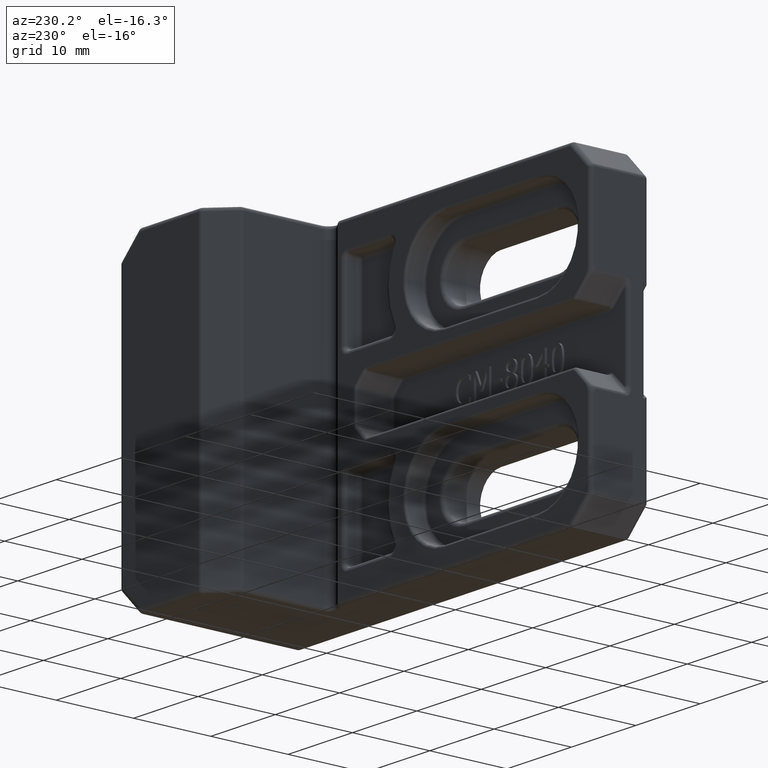
[diagram: clean part render]
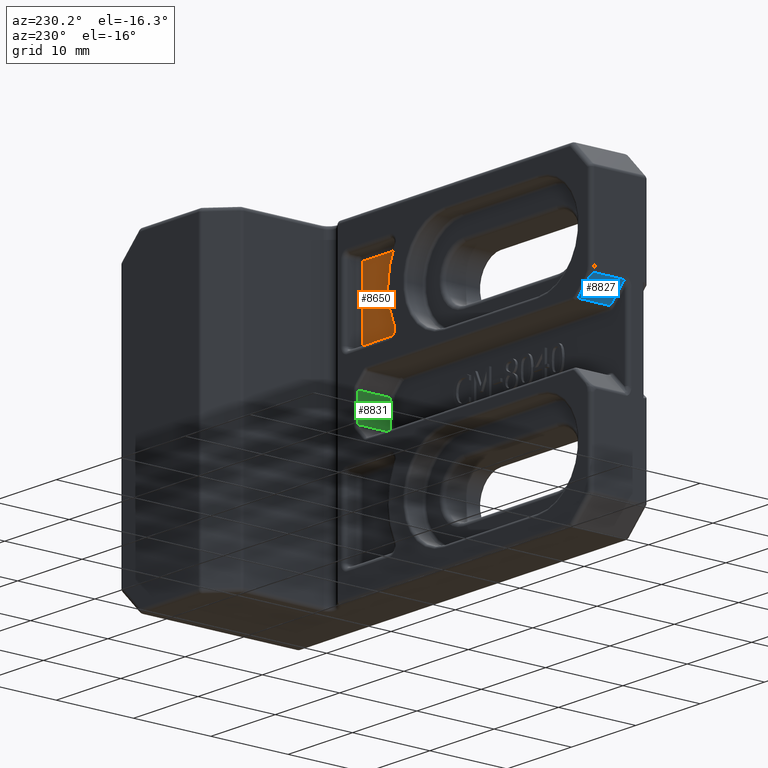
[diagram: same view with three faces highlighted in distinct colors, each labeled with its STEP entity id]
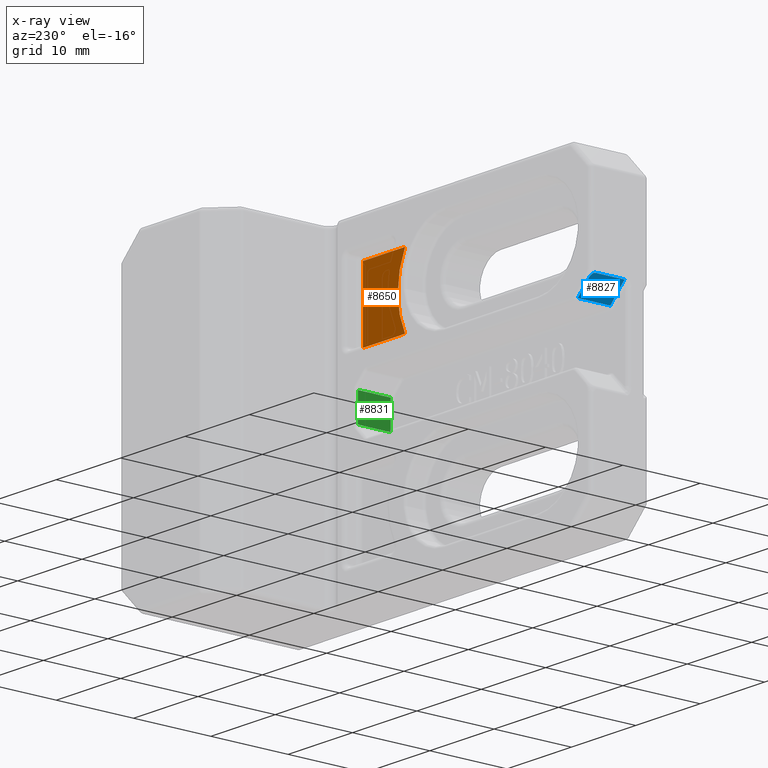
[diagram: x-ray of the same camera — body ghosted, the three highlighted faces saturated]
A machine part, auxiliary view with three faces highlighted in distinct colors.
The next image is the same camera in x-ray (body ghosted, the three faces saturated) — at least one of them is partly hidden behind the body in this view.
Their STEP definitions:

[orange] entity #8650 — the highlighted planar face has unit normal (0, -1, 0).
#151=PLANE('',#9326);
#472=LINE('',#14130,#1186);
#474=LINE('',#14138,#1188);
#476=LINE('',#14157,#1190);
#1186=VECTOR('',#10527,9.);
#1188=VECTOR('',#10535,6.5700235849385);
#1190=VECTOR('',#10561,6.5700235849385);
#2069=FACE_OUTER_BOUND('',#2632,.T.);
#2632=EDGE_LOOP('',(#6231,#6232,#6233,#6234));
#3242=CIRCLE('',#9307,9.59999999999999);
#3897=VERTEX_POINT('',#14127);
#3898=VERTEX_POINT('',#14129);
#3901=VERTEX_POINT('',#14137);
#3904=VERTEX_POINT('',#14147);
#4759=EDGE_CURVE('',#3897,#3898,#472,.T.);
#4763=EDGE_CURVE('',#3898,#3901,#474,.T.);
#4768=EDGE_CURVE('',#3901,#3904,#3242,.T.);
#4773=EDGE_CURVE('',#3904,#3897,#476,.T.);
#6231=ORIENTED_EDGE('',*,*,#4759,.F.);
#6232=ORIENTED_EDGE('',*,*,#4773,.F.);
#6233=ORIENTED_EDGE('',*,*,#4768,.F.);
#6234=ORIENTED_EDGE('',*,*,#4763,.F.);
#8650=ADVANCED_FACE('',(#2069),#151,.F.);
#9307=AXIS2_PLACEMENT_3D('',#14148,#10547,#10548);
#9326=AXIS2_PLACEMENT_3D('',#14183,#10593,#10594);
#10527=DIRECTION('',(0.,0.,1.));
#10535=DIRECTION('',(-1.,0.,3.37966221969218E-16));
#10547=DIRECTION('center_axis',(0.,1.,0.));
#10548=DIRECTION('ref_axis',(1.,0.,2.44005060357177E-16));
#10561=DIRECTION('',(1.,0.,-6.75932443938437E-16));
#10593=DIRECTION('center_axis',(0.,-1.,0.));
#10594=DIRECTION('ref_axis',(0.,0.,-1.));
#14127=CARTESIAN_POINT('',(37.8,5.5,6.75));
#14129=CARTESIAN_POINT('',(37.8,5.5,15.75));
#14130=CARTESIAN_POINT('',(37.8,5.5,9.));
#14137=CARTESIAN_POINT('',(31.2299764150615,5.5,15.75));
#14138=CARTESIAN_POINT('',(36.3567891499757,5.5,15.75));
#14147=CARTESIAN_POINT('',(31.2299764150615,5.5,6.75));
#14148=CARTESIAN_POINT('Origin',(22.75,5.5,11.25));
#14157=CARTESIAN_POINT('',(33.0717773575065,5.5,6.75));
#14183=CARTESIAN_POINT('Origin',(34.9135782999514,5.5,11.25));

[blue] entity #8827 — the highlighted planar face has unit normal (0.7071, 0, 0.7071).
#171=PLANE('',#9701);
#527=LINE('',#14608,#1241);
#530=LINE('',#14753,#1244);
#579=LINE('',#14980,#1293);
#583=LINE('',#14987,#1297);
#1241=VECTOR('',#11066,4.2);
#1244=VECTOR('',#11087,3.64318787414655);
#1293=VECTOR('',#11376,2.42308686146888);
#1297=VECTOR('',#11386,3.12132034355964);
#2246=FACE_OUTER_BOUND('',#2816,.T.);
#2816=EDGE_LOOP('',(#7001,#7002,#7003,#7004,#7005,#7006));
#3577=B_SPLINE_CURVE_WITH_KNOTS('',3,(#12781,#12782,#12783,#12784,#12785,
#12786,#12787,#12788,#12789,#12790,#12791,#12792,#12793,#12794,#12795,#12796,
#12797,#12798,#12799,#12800,#12801,#12802,#12803,#12804,#12805,#12806,#12807,
#12808,#12809,#12810,#12811,#12812,#12813,#12814,#12815,#12816,#12817,#12818,
#12819,#12820,#12821,#12822,#12823,#12824,#12825,#12826,#12827,#12828,#12829),
 .UNSPECIFIED.,.F.,.F.,(4,3,3,3,3,3,3,3,3,3,3,3,3,3,3,3,4),(0.5,0.53725233630472,
0.571350918847333,0.583333518032337,0.614408412168097,0.649940748009771,
0.66666992959959,0.693805226899162,0.732404781185098,0.749997176958949,
0.765854183536961,0.798846921667329,0.835662909350606,0.881122448185053,
0.925122875650276,0.962561437825138,1.),.UNSPECIFIED.);
#3579=B_SPLINE_CURVE_WITH_KNOTS('',3,(#12897,#12898,#12899,#12900,#12901,
#12902,#12903,#12904,#12905,#12906,#12907,#12908,#12909,#12910,#12911,#12912,
#12913,#12914,#12915,#12916,#12917,#12918,#12919,#12920,#12921,#12922,#12923,
#12924,#12925,#12926,#12927,#12928,#12929,#12930,#12931,#12932,#12933,#12934,
#12935,#12936,#12937,#12938,#12939,#12940,#12941,#12942),.UNSPECIFIED.,
 .F.,.F.,(4,3,3,3,3,3,3,3,3,3,3,3,3,3,3,4),(0.,0.0277313279911068,0.057558619865731,
0.0893714538902482,0.124319919543791,0.163122498872575,0.207333374474763,
0.243916702665418,0.276986803357255,0.319547964532485,0.333334920675758,
0.354440483119617,0.392662201800776,0.416669300052243,0.442147461964557,
0.5),.UNSPECIFIED.);
#3717=VERTEX_POINT('',#12773);
#3718=VERTEX_POINT('',#12780);
#3720=VERTEX_POINT('',#12895);
#3989=VERTEX_POINT('',#14534);
#4000=VERTEX_POINT('',#14602);
#4003=VERTEX_POINT('',#14638);
#4521=EDGE_CURVE('',#3717,#3718,#3577,.T.);
#4525=EDGE_CURVE('',#3720,#3717,#3579,.T.);
#4960=EDGE_CURVE('',#3989,#4000,#527,.T.);
#4971=EDGE_CURVE('',#3718,#4003,#530,.T.);
#5090=EDGE_CURVE('',#4000,#3720,#579,.T.);
#5094=EDGE_CURVE('',#4003,#3989,#583,.T.);
#7001=ORIENTED_EDGE('',*,*,#4525,.F.);
#7002=ORIENTED_EDGE('',*,*,#5090,.F.);
#7003=ORIENTED_EDGE('',*,*,#4960,.F.);
#7004=ORIENTED_EDGE('',*,*,#5094,.F.);
#7005=ORIENTED_EDGE('',*,*,#4971,.F.);
#7006=ORIENTED_EDGE('',*,*,#4521,.F.);
#8827=ADVANCED_FACE('',(#2246),#171,.F.);
#9701=AXIS2_PLACEMENT_3D('',#15281,#11509,#11510);
#11066=DIRECTION('',(-5.35047240783208E-17,1.,0.));
#11087=DIRECTION('',(0.,-1.,5.35047240783208E-17));
#11376=DIRECTION('',(-0.707106781186548,-3.78335532212958E-17,0.707106781186548));
#11386=DIRECTION('',(0.707106781186548,3.78335532212958E-17,-0.707106781186548));
#11509=DIRECTION('center_axis',(0.707106781186548,3.78335532212958E-17,
0.707106781186548));
#11510=DIRECTION('ref_axis',(-0.707106781186548,0.,0.707106781186547));
#12773=CARTESIAN_POINT('',(0.282633013131501,7.0626223530786,5.7173669868685));
#12780=CARTESIAN_POINT('',(0.146446609406726,6.64318787414655,5.85355339059327));
#12781=CARTESIAN_POINT('Ctrl Pts',(0.282633013131501,7.0626223530786,5.7173669868685));
#12782=CARTESIAN_POINT('Ctrl Pts',(0.274768519929387,7.05455795736017,5.72523148007061));
#12783=CARTESIAN_POINT('Ctrl Pts',(0.267201056345763,7.04622041071673,5.73279894365611));
#12784=CARTESIAN_POINT('Ctrl Pts',(0.259979595840118,7.03763670217723,5.74002040416933));
#12785=CARTESIAN_POINT('Ctrl Pts',(0.253369498553449,7.0297796837137,5.74663050146293));
#12786=CARTESIAN_POINT('Ctrl Pts',(0.247049630731737,7.02171666792647,5.75295036928031));
#12787=CARTESIAN_POINT('Ctrl Pts',(0.241032057189209,7.01344949747143,5.75896794281535));
#12788=CARTESIAN_POINT('Ctrl Pts',(0.238917418795185,7.01054432715144,5.76108258120674));
#12789=CARTESIAN_POINT('Ctrl Pts',(0.236839766692881,7.00761411876537,5.7631602333082));
#12790=CARTESIAN_POINT('Ctrl Pts',(0.234798775533583,7.00465761802996,5.76520122446702));
#12791=CARTESIAN_POINT('Ctrl Pts',(0.229505801678081,6.99699042112662,5.77049419832128));
#12792=CARTESIAN_POINT('Ctrl Pts',(0.224459033734334,6.98914664990666,5.77554096626567));
#12793=CARTESIAN_POINT('Ctrl Pts',(0.219641110420171,6.98111270501263,5.78035888957983));
#12794=CARTESIAN_POINT('Ctrl Pts',(0.214132095055215,6.9719263558376,5.78586790494478));
#12795=CARTESIAN_POINT('Ctrl Pts',(0.208922241944146,6.96248916850511,5.79107775805585));
#12796=CARTESIAN_POINT('Ctrl Pts',(0.204014617224523,6.95282699023211,5.79598538277548));
#12797=CARTESIAN_POINT('Ctrl Pts',(0.201704030454346,6.94827788500012,5.79829596954565));
#12798=CARTESIAN_POINT('Ctrl Pts',(0.199461493692147,6.94368233623336,5.80053850630764));
#12799=CARTESIAN_POINT('Ctrl Pts',(0.197286709653992,6.93904244934557,5.80271329034757));
#12800=CARTESIAN_POINT('Ctrl Pts',(0.193759136525512,6.93151639617553,5.80624086347893));
#12801=CARTESIAN_POINT('Ctrl Pts',(0.190409877903056,6.92387367467146,5.80959012211251));
#12802=CARTESIAN_POINT('Ctrl Pts',(0.187252697472232,6.91615132538454,5.81274730254915));
#12803=CARTESIAN_POINT('Ctrl Pts',(0.18276165556159,6.90516639910109,5.81723834446805));
#12804=CARTESIAN_POINT('Ctrl Pts',(0.178657439203738,6.89401439966081,5.82134256080356));
#12805=CARTESIAN_POINT('Ctrl Pts',(0.174964491880082,6.88277853033956,5.82503550812213));
#12806=CARTESIAN_POINT('Ctrl Pts',(0.173281369054143,6.87765759400702,5.82671863094575));
#12807=CARTESIAN_POINT('Ctrl Pts',(0.171682534103374,6.87251661855661,5.82831746589601));
#12808=CARTESIAN_POINT('Ctrl Pts',(0.170171357033429,6.86736550791506,5.82982864296852));
#12809=CARTESIAN_POINT('Ctrl Pts',(0.16880924893589,6.86272252486845,5.83119075106836));
#12810=CARTESIAN_POINT('Ctrl Pts',(0.167518359944102,6.8580713117531,5.83248164006183));
#12811=CARTESIAN_POINT('Ctrl Pts',(0.166295664826925,6.85341121863739,5.833704335224));
#12812=CARTESIAN_POINT('Ctrl Pts',(0.163751675227386,6.84371523780563,5.83624832491714));
#12813=CARTESIAN_POINT('Ctrl Pts',(0.161510879421752,6.83399049198299,5.83848912096133));
#12814=CARTESIAN_POINT('Ctrl Pts',(0.159549838224119,6.82422859618413,5.84045016207772));
#12815=CARTESIAN_POINT('Ctrl Pts',(0.157361548537668,6.81333547679295,5.84263845167351));
#12816=CARTESIAN_POINT('Ctrl Pts',(0.155517817346852,6.80238620239583,5.84448218266364));
#12817=CARTESIAN_POINT('Ctrl Pts',(0.153968530561266,6.79137194074751,5.84603146944274));
#12818=CARTESIAN_POINT('Ctrl Pts',(0.152055506703238,6.77777178259224,5.84794449329275));
#12819=CARTESIAN_POINT('Ctrl Pts',(0.150597779157887,6.76406942495428,5.84940222084211));
#12820=CARTESIAN_POINT('Ctrl Pts',(0.149504961718737,6.75033425337053,5.85049503828126));
#12821=CARTESIAN_POINT('Ctrl Pts',(0.148447220358025,6.7370399385471,5.85155277964197));
#12822=CARTESIAN_POINT('Ctrl Pts',(0.147733285527959,6.72371911197323,5.85226671440536));
#12823=CARTESIAN_POINT('Ctrl Pts',(0.147271498722016,6.71044569512312,5.85272850134658));
#12824=CARTESIAN_POINT('Ctrl Pts',(0.146878579038236,6.69915176752644,5.85312142114547));
#12825=CARTESIAN_POINT('Ctrl Pts',(0.146665504404501,6.68789522457107,5.85333449620892));
#12826=CARTESIAN_POINT('Ctrl Pts',(0.146557372240376,6.67668996270258,5.85344262822245));
#12827=CARTESIAN_POINT('Ctrl Pts',(0.146449240076252,6.66548470083408,5.85355076023597));
#12828=CARTESIAN_POINT('Ctrl Pts',(0.146446609406726,6.65433292977542,5.85355339059327));
#12829=CARTESIAN_POINT('Ctrl Pts',(0.146446609406726,6.64318787414655,5.85355339059327));
#12895=CARTESIAN_POINT('',(0.640172239444596,7.2,5.3598277605554));
#12897=CARTESIAN_POINT('Ctrl Pts',(0.640172239444596,7.2,5.3598277605554));
#12898=CARTESIAN_POINT('Ctrl Pts',(0.634334848919855,7.2,5.36566515108014));
#12899=CARTESIAN_POINT('Ctrl Pts',(0.628494353655825,7.19999919697941,5.37150564641232));
#12900=CARTESIAN_POINT('Ctrl Pts',(0.62257741385736,7.19995324348698,5.37742258633369));
#12901=CARTESIAN_POINT('Ctrl Pts',(0.616213265323615,7.19990381677969,5.38378673499962));
#12902=CARTESIAN_POINT('Ctrl Pts',(0.609760703270043,7.199802140796,5.39023929701744));
#12903=CARTESIAN_POINT('Ctrl Pts',(0.603171647242372,7.19960438476545,5.39682835291703));
#12904=CARTESIAN_POINT('Ctrl Pts',(0.596143971157409,7.19939346451818,5.40385602886539));
#12905=CARTESIAN_POINT('Ctrl Pts',(0.588961165289887,7.19907386948776,5.41103883471008));
#12906=CARTESIAN_POINT('Ctrl Pts',(0.581610248373173,7.19860326762206,5.41838975162685));
#12907=CARTESIAN_POINT('Ctrl Pts',(0.573534788412962,7.19808628088874,5.42646521158713));
#12908=CARTESIAN_POINT('Ctrl Pts',(0.565256588460484,7.19738844407329,5.43474341156441));
#12909=CARTESIAN_POINT('Ctrl Pts',(0.556805589989831,7.19646912538678,5.44319441003883));
#12910=CARTESIAN_POINT('Ctrl Pts',(0.547422616161574,7.19544842431751,5.45257738387128));
#12911=CARTESIAN_POINT('Ctrl Pts',(0.537827818581928,7.1941548662915,5.46217218142115));
#12912=CARTESIAN_POINT('Ctrl Pts',(0.528105399047379,7.19254841014695,5.47189460095374));
#12913=CARTESIAN_POINT('Ctrl Pts',(0.517027870490524,7.19071804644444,5.48297212950836));
#12914=CARTESIAN_POINT('Ctrl Pts',(0.505788676535785,7.1884798771451,5.49421132346492));
#12915=CARTESIAN_POINT('Ctrl Pts',(0.494531375222679,7.18578927957935,5.50546862477802));
#12916=CARTESIAN_POINT('Ctrl Pts',(0.485216256649048,7.18356288138126,5.51478374335164));
#12917=CARTESIAN_POINT('Ctrl Pts',(0.47589013087244,7.18102731469221,5.52410986912756));
#12918=CARTESIAN_POINT('Ctrl Pts',(0.466617066461369,7.17815439794666,5.53338293353863));
#12919=CARTESIAN_POINT('Ctrl Pts',(0.458234527502698,7.17555737764388,5.5417654724973));
#12920=CARTESIAN_POINT('Ctrl Pts',(0.449895344651126,7.17268603971736,5.55010465536852));
#12921=CARTESIAN_POINT('Ctrl Pts',(0.441616210322139,7.16951721935231,5.55838378977733));
#12922=CARTESIAN_POINT('Ctrl Pts',(0.43096097906503,7.1654389531399,5.56903902113717));
#12923=CARTESIAN_POINT('Ctrl Pts',(0.420404744031989,7.16086616280399,5.57959525607173));
#12924=CARTESIAN_POINT('Ctrl Pts',(0.409899234025896,7.15574251644384,5.59010076600502));
#12925=CARTESIAN_POINT('Ctrl Pts',(0.406496154746164,7.15408279932827,5.59350384526117));
#12926=CARTESIAN_POINT('Ctrl Pts',(0.403099219979316,7.15236664705382,5.59690078002454));
#12927=CARTESIAN_POINT('Ctrl Pts',(0.399706828147404,7.15059177129377,5.60029317185432));
#12928=CARTESIAN_POINT('Ctrl Pts',(0.394513634167643,7.14787472840231,5.60548636583081));
#12929=CARTESIAN_POINT('Ctrl Pts',(0.389331081570554,7.1450200956019,5.61066891842945));
#12930=CARTESIAN_POINT('Ctrl Pts',(0.384165020424934,7.14203040561315,5.61583497957507));
#12931=CARTESIAN_POINT('Ctrl Pts',(0.374809395038367,7.13661614148265,5.62519060496163));
#12932=CARTESIAN_POINT('Ctrl Pts',(0.365501569870278,7.13075488089505,5.63449843012972));
#12933=CARTESIAN_POINT('Ctrl Pts',(0.356289730170577,7.12447211593302,5.64371026982942));
#12934=CARTESIAN_POINT('Ctrl Pts',(0.350503764798578,7.12052590521987,5.64949623520142));
#12935=CARTESIAN_POINT('Ctrl Pts',(0.344758168933662,7.11641541062866,5.65524183106629));
#12936=CARTESIAN_POINT('Ctrl Pts',(0.339066475620037,7.11214865132345,5.66093352438046));
#12937=CARTESIAN_POINT('Ctrl Pts',(0.333026016990643,7.10762044123824,5.66697398301044));
#12938=CARTESIAN_POINT('Ctrl Pts',(0.327046283430475,7.10291623204608,5.67295371657204));
#12939=CARTESIAN_POINT('Ctrl Pts',(0.321154579191258,7.09805340840775,5.67884542081231));
#12940=CARTESIAN_POINT('Ctrl Pts',(0.307776453847446,7.08701153299836,5.69222354615851));
#12941=CARTESIAN_POINT('Ctrl Pts',(0.29484649924368,7.07514628597278,5.70515350075632));
#12942=CARTESIAN_POINT('Ctrl Pts',(0.282633013131501,7.0626223530786,5.7173669868685));
#14534=CARTESIAN_POINT('',(2.35355339059327,3.,3.64644660940672));
#14602=CARTESIAN_POINT('',(2.35355339059327,7.2,3.64644660940672));
#14608=CARTESIAN_POINT('',(2.35355339059327,7.5,3.64644660940672));
#14638=CARTESIAN_POINT('',(0.146446609406725,3.,5.85355339059327));
#14753=CARTESIAN_POINT('',(0.146446609406726,3.75,5.85355339059327));
#14980=CARTESIAN_POINT('',(2.75,7.2,3.25));
#14987=CARTESIAN_POINT('',(6.88065205626021,3.,-0.880652056260208));
#15281=CARTESIAN_POINT('Origin',(2.5,7.5,3.5));

[green] entity #8831 — the highlighted planar face has unit normal (1, 0, 0).
#175=PLANE('',#9705);
#602=LINE('',#15016,#1316);
#604=LINE('',#15019,#1318);
#607=LINE('',#15024,#1321);
#609=LINE('',#15027,#1323);
#1316=VECTOR('',#11425,3.5857864376269);
#1318=VECTOR('',#11429,4.2);
#1321=VECTOR('',#11436,4.2);
#1323=VECTOR('',#11440,3.5857864376269);
#2250=FACE_OUTER_BOUND('',#2820,.T.);
#2820=EDGE_LOOP('',(#7021,#7022,#7023,#7024));
#3961=VERTEX_POINT('',#14439);
#3967=VERTEX_POINT('',#14459);
#3969=VERTEX_POINT('',#14465);
#3976=VERTEX_POINT('',#14489);
#5113=EDGE_CURVE('',#3969,#3976,#602,.T.);
#5115=EDGE_CURVE('',#3976,#3967,#604,.T.);
#5118=EDGE_CURVE('',#3961,#3969,#607,.T.);
#5120=EDGE_CURVE('',#3967,#3961,#609,.T.);
#7021=ORIENTED_EDGE('',*,*,#5113,.F.);
#7022=ORIENTED_EDGE('',*,*,#5118,.F.);
#7023=ORIENTED_EDGE('',*,*,#5120,.F.);
#7024=ORIENTED_EDGE('',*,*,#5115,.F.);
#8831=ADVANCED_FACE('',(#2250),#175,.F.);
#9705=AXIS2_PLACEMENT_3D('',#15285,#11517,#11518);
#11425=DIRECTION('',(0.,0.,1.));
#11429=DIRECTION('',(5.35047240783208E-17,-1.,0.));
#11436=DIRECTION('',(-5.35047240783208E-17,1.,0.));
#11440=DIRECTION('',(0.,0.,-1.));
#11517=DIRECTION('center_axis',(1.,5.35047240783208E-17,0.));
#11518=DIRECTION('ref_axis',(0.,0.,1.));
#14439=CARTESIAN_POINT('',(36.5,3.,-1.79289321881345));
#14459=CARTESIAN_POINT('',(36.5,3.,1.79289321881345));
#14465=CARTESIAN_POINT('',(36.5,7.2,-1.79289321881345));
#14489=CARTESIAN_POINT('',(36.5,7.2,1.79289321881345));
#15016=CARTESIAN_POINT('',(36.5,7.2,-1.));
#15019=CARTESIAN_POINT('',(36.5,7.5,1.79289321881345));
#15024=CARTESIAN_POINT('',(36.5,7.5,-1.79289321881345));
#15027=CARTESIAN_POINT('',(36.5,3.,-1.));
#15285=CARTESIAN_POINT('Origin',(36.5,7.5,-2.));